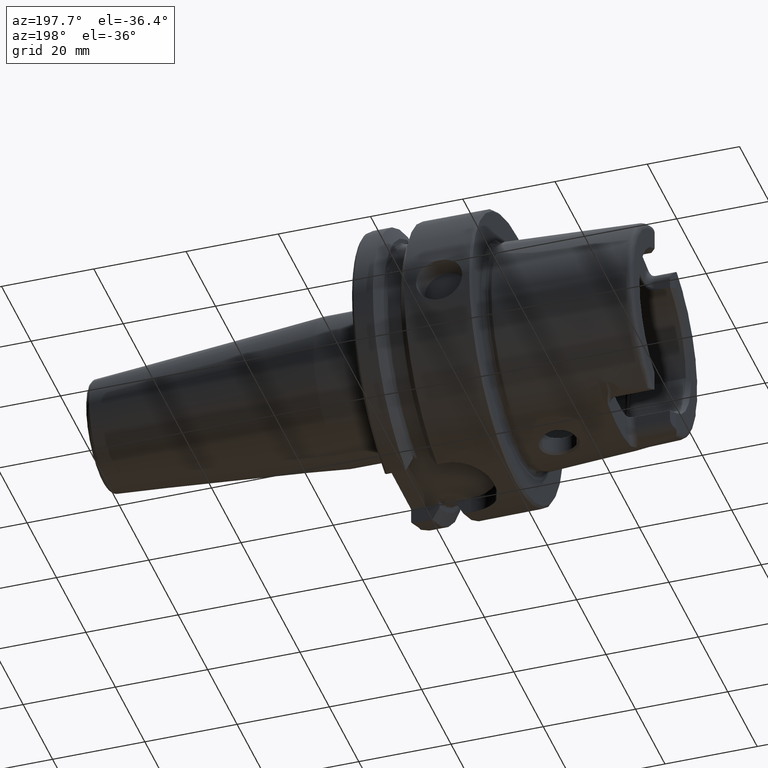
[diagram: clean part render]
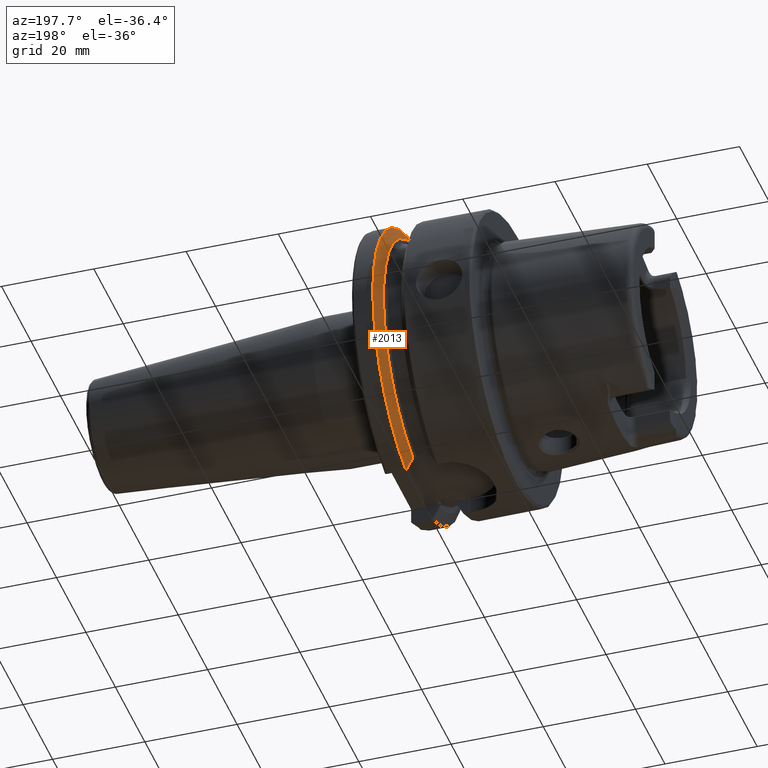
[diagram: same view with one face highlighted and labeled with its STEP entity id]
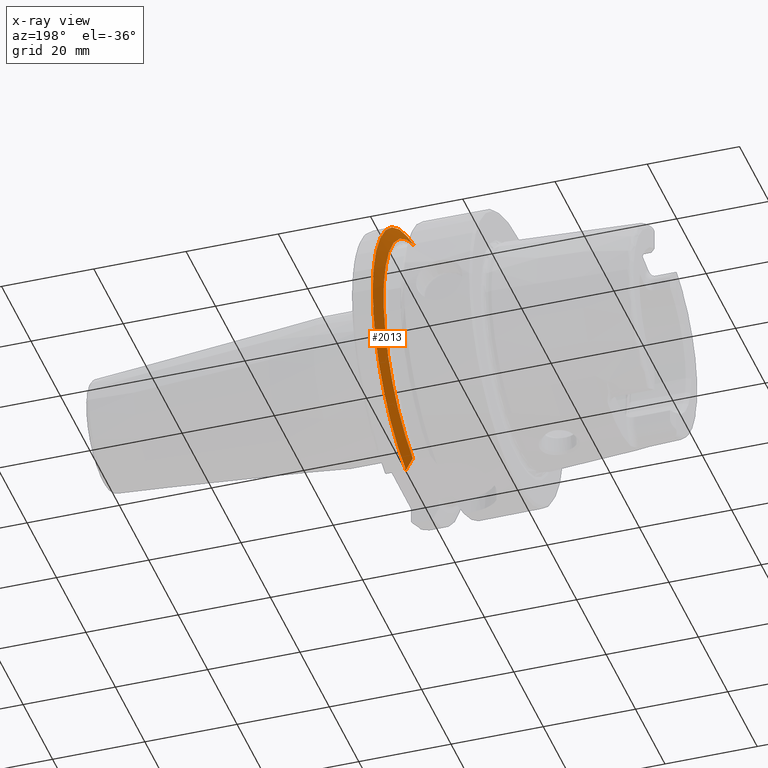
[diagram: x-ray of the same camera — body ghosted, the highlighted face saturated]
A machine part, auxiliary view. The second image highlights one B-rep face of the part: STEP entity #2013.
The next image is the same camera in x-ray: the body ghosted, the highlighted face saturated — about 0% of this face is hidden behind the body in this view.
In plain terms, the highlighted conical surface has half-angle 60 deg.
Its self-contained STEP definition (entity closure, byte-faithful):
#24=(
BOUNDED_CURVE()
B_SPLINE_CURVE(2,(#3945,#3946,#3947),.UNSPECIFIED.,.F.,.F.)
B_SPLINE_CURVE_WITH_KNOTS((3,3),(0.,0.311314369989023),.UNSPECIFIED.)
CURVE()
GEOMETRIC_REPRESENTATION_ITEM()
RATIONAL_B_SPLINE_CURVE((1.,1.00102053193238,1.))
REPRESENTATION_ITEM('')
);
#27=(
BOUNDED_CURVE()
B_SPLINE_CURVE(2,(#4142,#4143,#4144),.UNSPECIFIED.,.F.,.F.)
B_SPLINE_CURVE_WITH_KNOTS((3,3),(0.,0.308905667770379),.UNSPECIFIED.)
CURVE()
GEOMETRIC_REPRESENTATION_ITEM()
RATIONAL_B_SPLINE_CURVE((1.,1.00099999355179,1.))
REPRESENTATION_ITEM('')
);
#102=CONICAL_SURFACE('',#2235,30.1987976320958,1.0471975511966);
#460=FACE_OUTER_BOUND('',#586,.T.);
#586=EDGE_LOOP('',(#1633,#1634,#1635,#1636));
#714=CIRCLE('',#2228,31.5);
#718=CIRCLE('',#2236,28.8975952641916);
#901=VERTEX_POINT('',#3942);
#902=VERTEX_POINT('',#3944);
#928=VERTEX_POINT('',#4126);
#931=VERTEX_POINT('',#4140);
#1148=EDGE_CURVE('',#902,#901,#24,.T.);
#1188=EDGE_CURVE('',#902,#928,#714,.T.);
#1195=EDGE_CURVE('',#901,#931,#718,.T.);
#1196=EDGE_CURVE('',#931,#928,#27,.T.);
#1633=ORIENTED_EDGE('',*,*,#1148,.T.);
#1634=ORIENTED_EDGE('',*,*,#1195,.T.);
#1635=ORIENTED_EDGE('',*,*,#1196,.T.);
#1636=ORIENTED_EDGE('',*,*,#1188,.F.);
#2013=ADVANCED_FACE('',(#460),#102,.T.);
#2228=AXIS2_PLACEMENT_3D('',#4127,#2697,#2698);
#2235=AXIS2_PLACEMENT_3D('',#4139,#2714,#2715);
#2236=AXIS2_PLACEMENT_3D('',#4141,#2716,#2717);
#2697=DIRECTION('center_axis',(1.,0.,0.));
#2698=DIRECTION('ref_axis',(0.,0.,-1.));
#2714=DIRECTION('center_axis',(1.,0.,0.));
#2715=DIRECTION('ref_axis',(0.,1.,0.));
#2716=DIRECTION('center_axis',(1.,0.,0.));
#2717=DIRECTION('ref_axis',(0.,0.,-1.));
#3942=CARTESIAN_POINT('',(19.875,9.,-27.4603534582684));
#3944=CARTESIAN_POINT('',(21.3774990747593,9.,-30.1869176962472));
#3945=CARTESIAN_POINT('Ctrl Pts',(21.3774990747593,9.,-30.1869176962472));
#3946=CARTESIAN_POINT('Ctrl Pts',(20.5907174110267,9.,-28.7648946319029));
#3947=CARTESIAN_POINT('Ctrl Pts',(19.875,9.,-27.4603534582684));
#4126=CARTESIAN_POINT('',(21.3774990747593,8.,30.4671954731642));
#4127=CARTESIAN_POINT('Origin',(21.3774990747593,0.,0.));
#4139=CARTESIAN_POINT('Origin',(20.6262495373797,0.,0.));
#4140=CARTESIAN_POINT('',(19.875,8.,27.7681654426977));
#4141=CARTESIAN_POINT('Origin',(19.875,0.,0.));
#4142=CARTESIAN_POINT('Ctrl Pts',(19.875,8.,27.7681654426977));
#4143=CARTESIAN_POINT('Ctrl Pts',(20.5914314297926,8.,29.0595327079868));
#4144=CARTESIAN_POINT('Ctrl Pts',(21.3774990747593,8.,30.4671954731642));